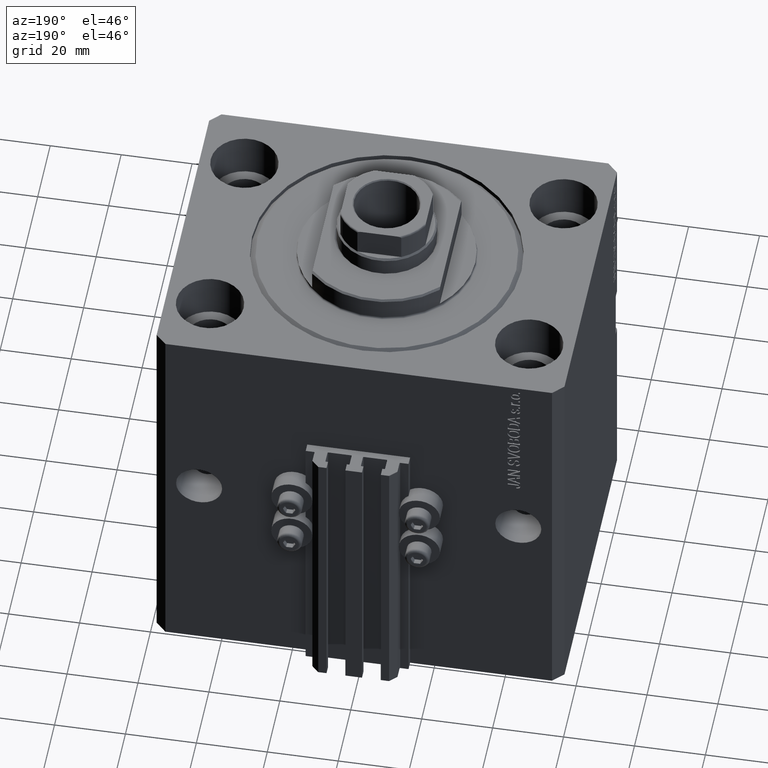
[diagram: clean part render]
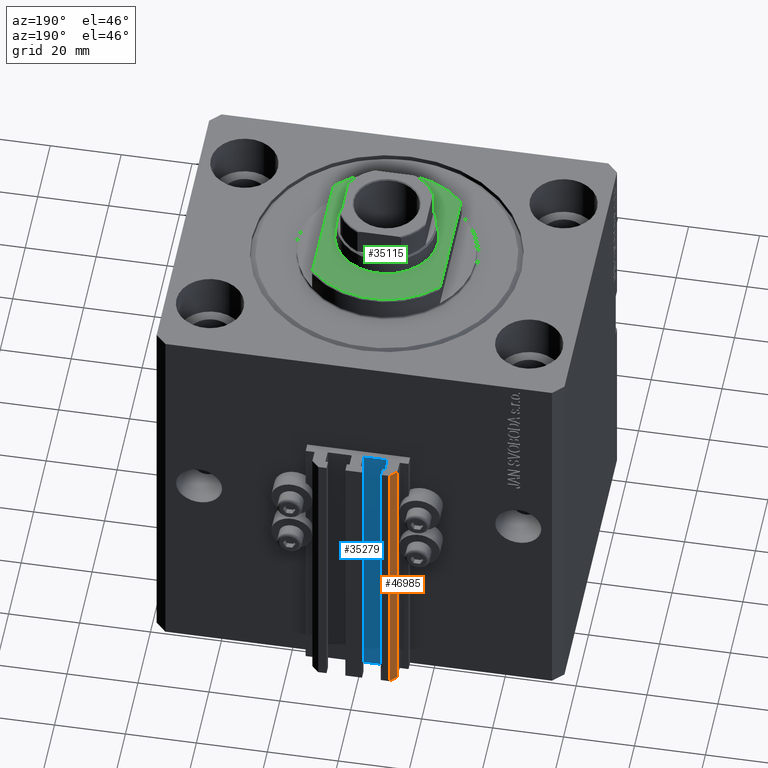
[diagram: same view with three faces highlighted in distinct colors, each labeled with its STEP entity id]
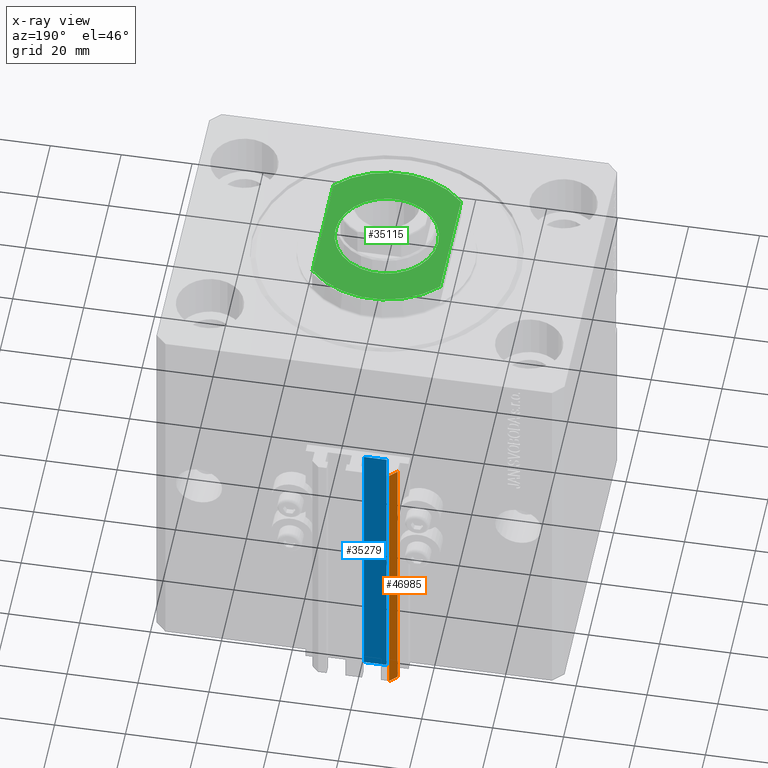
[diagram: x-ray of the same camera — body ghosted, the three highlighted faces saturated]
A machine part, auxiliary view with three faces highlighted in distinct colors.
The next image is the same camera in x-ray (body ghosted, the three faces saturated) — at least one of them is partly hidden behind the body in this view.
Their STEP definitions:

[orange] entity #46985 — the highlighted planar face has unit normal (-0.7071, 0.7071, 0).
#2159 = EDGE_LOOP ( 'NONE', ( #3400, #42994, #21381, #9452 ) ) ;
#3400 = ORIENTED_EDGE ( 'NONE', *, *, #8041, .F. ) ;
#4600 = CARTESIAN_POINT ( 'NONE',  ( -10.00000000000000000, 52.99999999999999289, -33.00000000000000000 ) ) ;
#4658 = PLANE ( 'NONE',  #21161 ) ;
#4955 = DIRECTION ( 'NONE',  ( 0.000000000000000000, 0.000000000000000000, 1.000000000000000000 ) ) ;
#8041 = EDGE_CURVE ( 'NONE', #14284, #19846, #12202, .T. ) ;
#8708 = CARTESIAN_POINT ( 'NONE',  ( -12.00000000000000000, 50.99999999999999289, -33.00000000000000000 ) ) ;
#8814 = CARTESIAN_POINT ( 'NONE',  ( -10.00000000000000000, 52.99999999999999289, -115.0000000000000000 ) ) ;
#9263 = VECTOR ( 'NONE', #33833, 999.9999999999998863 ) ;
#9452 = ORIENTED_EDGE ( 'NONE', *, *, #10214, .T. ) ;
#10214 = EDGE_CURVE ( 'NONE', #19318, #19846, #35715, .T. ) ;
#12202 = LINE ( 'NONE', #30668, #40634 ) ;
#14284 = VERTEX_POINT ( 'NONE', #4600 ) ;
#14727 = VECTOR ( 'NONE', #44451, 1000.000000000000000 ) ;
#14933 = LINE ( 'NONE', #40020, #14727 ) ;
#17005 = VECTOR ( 'NONE', #4955, 1000.000000000000000 ) ;
#17565 = CARTESIAN_POINT ( 'NONE',  ( -10.00000000000000000, 52.99999999999999289, -115.0000000000000000 ) ) ;
#18821 = LINE ( 'NONE', #27153, #9263 ) ;
#19318 = VERTEX_POINT ( 'NONE', #29863 ) ;
#19846 = VERTEX_POINT ( 'NONE', #8708 ) ;
#21161 = AXIS2_PLACEMENT_3D ( 'NONE', #8814, #34684, #42054 ) ;
#21381 = ORIENTED_EDGE ( 'NONE', *, *, #45485, .T. ) ;
#26509 = DIRECTION ( 'NONE',  ( -0.7071067811865472397, -0.7071067811865479058, 0.000000000000000000 ) ) ;
#27153 = CARTESIAN_POINT ( 'NONE',  ( -10.00000000000000000, 52.99999999999999289, -115.0000000000000000 ) ) ;
#28083 = CARTESIAN_POINT ( 'NONE',  ( -12.00000000000000000, 50.99999999999999289, -115.0000000000000000 ) ) ;
#29863 = CARTESIAN_POINT ( 'NONE',  ( -12.00000000000000000, 50.99999999999999289, -115.0000000000000000 ) ) ;
#30668 = CARTESIAN_POINT ( 'NONE',  ( -10.00000000000000000, 52.99999999999999289, -33.00000000000000000 ) ) ;
#33833 = DIRECTION ( 'NONE',  ( -0.7071067811865472397, -0.7071067811865479058, 0.000000000000000000 ) ) ;
#34684 = DIRECTION ( 'NONE',  ( -0.7071067811865477948, 0.7071067811865473507, 0.000000000000000000 ) ) ;
#35715 = LINE ( 'NONE', #28083, #17005 ) ;
#38328 = EDGE_CURVE ( 'NONE', #39243, #14284, #14933, .T. ) ;
#39243 = VERTEX_POINT ( 'NONE', #17565 ) ;
#40020 = CARTESIAN_POINT ( 'NONE',  ( -10.00000000000000000, 52.99999999999999289, -115.0000000000000000 ) ) ;
#40634 = VECTOR ( 'NONE', #26509, 999.9999999999998863 ) ;
#42054 = DIRECTION ( 'NONE',  ( -0.7071067811865473507, -0.7071067811865477948, 0.000000000000000000 ) ) ;
#42994 = ORIENTED_EDGE ( 'NONE', *, *, #38328, .F. ) ;
#44451 = DIRECTION ( 'NONE',  ( 0.000000000000000000, 0.000000000000000000, 1.000000000000000000 ) ) ;
#45485 = EDGE_CURVE ( 'NONE', #39243, #19318, #18821, .T. ) ;
#46470 = FACE_OUTER_BOUND ( 'NONE', #2159, .T. ) ;
#46985 = ADVANCED_FACE ( 'NONE', ( #46470 ), #4658, .T. ) ;

[blue] entity #35279 — the highlighted planar face has unit normal (0, 1, 0).
#1143 = PLANE ( 'NONE',  #36599 ) ;
#1269 = VECTOR ( 'NONE', #3286, 1000.000000000000000 ) ;
#2719 = CARTESIAN_POINT ( 'NONE',  ( -8.199999999999997513, 46.99999999999999289, -115.0000000000000000 ) ) ;
#2817 = ORIENTED_EDGE ( 'NONE', *, *, #5525, .T. ) ;
#3006 = VERTEX_POINT ( 'NONE', #6338 ) ;
#3286 = DIRECTION ( 'NONE',  ( -1.000000000000000000, 0.000000000000000000, 0.000000000000000000 ) ) ;
#4968 = EDGE_CURVE ( 'NONE', #7213, #8369, #14552, .T. ) ;
#5525 = EDGE_CURVE ( 'NONE', #3006, #7213, #37015, .T. ) ;
#6338 = CARTESIAN_POINT ( 'NONE',  ( -1.800000000000000933, 46.99999999999999289, -115.0000000000000000 ) ) ;
#7213 = VERTEX_POINT ( 'NONE', #41500 ) ;
#8369 = VERTEX_POINT ( 'NONE', #45857 ) ;
#11215 = DIRECTION ( 'NONE',  ( -1.000000000000000000, 0.000000000000000000, 0.000000000000000000 ) ) ;
#11995 = EDGE_CURVE ( 'NONE', #3006, #16248, #45122, .T. ) ;
#14003 = CARTESIAN_POINT ( 'NONE',  ( -1.800000000000000933, 46.99999999999999289, -33.00000000000000000 ) ) ;
#14552 = LINE ( 'NONE', #2719, #35039 ) ;
#15462 = DIRECTION ( 'NONE',  ( 0.000000000000000000, 0.000000000000000000, 1.000000000000000000 ) ) ;
#15809 = VECTOR ( 'NONE', #11215, 1000.000000000000000 ) ;
#16248 = VERTEX_POINT ( 'NONE', #14003 ) ;
#16653 = ORIENTED_EDGE ( 'NONE', *, *, #11995, .F. ) ;
#18909 = DIRECTION ( 'NONE',  ( 0.000000000000000000, 1.000000000000000000, -0.000000000000000000 ) ) ;
#21945 = DIRECTION ( 'NONE',  ( 0.000000000000000000, 0.000000000000000000, 1.000000000000000000 ) ) ;
#22065 = EDGE_CURVE ( 'NONE', #16248, #8369, #37084, .T. ) ;
#22623 = VECTOR ( 'NONE', #41431, 1000.000000000000000 ) ;
#22846 = FACE_OUTER_BOUND ( 'NONE', #41002, .T. ) ;
#26432 = CARTESIAN_POINT ( 'NONE',  ( -1.800000000000000933, 46.99999999999999289, -115.0000000000000000 ) ) ;
#26655 = CARTESIAN_POINT ( 'NONE',  ( -1.800000000000000933, 46.99999999999999289, -115.0000000000000000 ) ) ;
#30920 = CARTESIAN_POINT ( 'NONE',  ( -1.800000000000000933, 46.99999999999999289, -115.0000000000000000 ) ) ;
#35039 = VECTOR ( 'NONE', #21945, 1000.000000000000000 ) ;
#35279 = ADVANCED_FACE ( 'NONE', ( #22846 ), #1143, .T. ) ;
#36599 = AXIS2_PLACEMENT_3D ( 'NONE', #30920, #18909, #15462 ) ;
#36949 = ORIENTED_EDGE ( 'NONE', *, *, #4968, .T. ) ;
#37015 = LINE ( 'NONE', #26655, #1269 ) ;
#37084 = LINE ( 'NONE', #44941, #15809 ) ;
#41002 = EDGE_LOOP ( 'NONE', ( #46096, #16653, #2817, #36949 ) ) ;
#41431 = DIRECTION ( 'NONE',  ( 0.000000000000000000, 0.000000000000000000, 1.000000000000000000 ) ) ;
#41500 = CARTESIAN_POINT ( 'NONE',  ( -8.199999999999997513, 46.99999999999999289, -115.0000000000000000 ) ) ;
#44941 = CARTESIAN_POINT ( 'NONE',  ( -1.800000000000000933, 46.99999999999999289, -33.00000000000000000 ) ) ;
#45122 = LINE ( 'NONE', #26432, #22623 ) ;
#45857 = CARTESIAN_POINT ( 'NONE',  ( -8.199999999999997513, 46.99999999999999289, -33.00000000000000000 ) ) ;
#46096 = ORIENTED_EDGE ( 'NONE', *, *, #22065, .F. ) ;

[green] entity #35115 — the highlighted planar face has unit normal (0, 0, 1).
#30 = EDGE_CURVE ( 'NONE', #42339, #21613, #35628, .T. ) ;
#365 = CIRCLE ( 'NONE', #40380, 14.50000000000001421 ) ;
#897 = VERTEX_POINT ( 'NONE', #3554 ) ;
#1901 = CARTESIAN_POINT ( 'NONE',  ( 18.00000000000000000, -41.24318125460256113, -7.000000000000000000 ) ) ;
#2319 = DIRECTION ( 'NONE',  ( -1.000000000000000000, 0.000000000000000000, 0.000000000000000000 ) ) ;
#2712 = CIRCLE ( 'NONE', #25532, 24.49999999999996803 ) ;
#2993 = EDGE_CURVE ( 'NONE', #21613, #43724, #10522, .T. ) ;
#3333 = CARTESIAN_POINT ( 'NONE',  ( 18.00000000000000000, -16.62077013859462227, -7.000000000000000000 ) ) ;
#3554 = CARTESIAN_POINT ( 'NONE',  ( 14.50000000000001243, 1.775737858763663987E-15, -7.000000000000000000 ) ) ;
#5355 = VERTEX_POINT ( 'NONE', #38981 ) ;
#5669 = CARTESIAN_POINT ( 'NONE',  ( -18.00000000000000000, -16.62077013859462227, -7.000000000000000000 ) ) ;
#6649 = VECTOR ( 'NONE', #28726, 1000.000000000000000 ) ;
#8584 = FACE_OUTER_BOUND ( 'NONE', #10337, .T. ) ;
#9820 = CARTESIAN_POINT ( 'NONE',  ( -18.00000000000000000, 16.62077013859462227, -7.000000000000000000 ) ) ;
#10337 = EDGE_LOOP ( 'NONE', ( #22647, #45662, #36430, #45267 ) ) ;
#10522 = LINE ( 'NONE', #1901, #6649 ) ;
#14009 = CARTESIAN_POINT ( 'NONE',  ( 18.00000000000000000, 16.62077013859462227, -7.000000000000000000 ) ) ;
#14217 = EDGE_CURVE ( 'NONE', #42339, #17367, #19375, .T. ) ;
#14465 = DIRECTION ( 'NONE',  ( -1.000000000000000000, 0.000000000000000000, 0.000000000000000000 ) ) ;
#15664 = ORIENTED_EDGE ( 'NONE', *, *, #44503, .T. ) ;
#16619 = CARTESIAN_POINT ( 'NONE',  ( 0.000000000000000000, 0.000000000000000000, -7.000000000000000000 ) ) ;
#16679 = DIRECTION ( 'NONE',  ( -1.000000000000000000, 0.000000000000000000, 0.000000000000000000 ) ) ;
#17367 = VERTEX_POINT ( 'NONE', #5669 ) ;
#19193 = PLANE ( 'NONE',  #32648 ) ;
#19375 = LINE ( 'NONE', #23788, #28133 ) ;
#19678 = DIRECTION ( 'NONE',  ( -1.000000000000000000, 0.000000000000000000, -0.000000000000000000 ) ) ;
#20307 = DIRECTION ( 'NONE',  ( 0.000000000000000000, 0.000000000000000000, -1.000000000000000000 ) ) ;
#21166 = AXIS2_PLACEMENT_3D ( 'NONE', #39539, #36116, #16679 ) ;
#21613 = VERTEX_POINT ( 'NONE', #14009 ) ;
#22647 = ORIENTED_EDGE ( 'NONE', *, *, #30, .T. ) ;
#23313 = DIRECTION ( 'NONE',  ( -0.000000000000000000, -1.000000000000000000, -0.000000000000000000 ) ) ;
#23788 = CARTESIAN_POINT ( 'NONE',  ( -18.00000000000000000, -41.24318125460256113, -7.000000000000000000 ) ) ;
#23844 = DIRECTION ( 'NONE',  ( 0.000000000000000000, 0.000000000000000000, -1.000000000000000000 ) ) ;
#25532 = AXIS2_PLACEMENT_3D ( 'NONE', #28168, #36054, #43406 ) ;
#25788 = DIRECTION ( 'NONE',  ( -0.000000000000000000, -0.000000000000000000, 1.000000000000000000 ) ) ;
#26817 = CARTESIAN_POINT ( 'NONE',  ( 0.000000000000000000, 0.000000000000000000, -7.000000000000000000 ) ) ;
#27320 = EDGE_LOOP ( 'NONE', ( #28793, #15664 ) ) ;
#28133 = VECTOR ( 'NONE', #23313, 1000.000000000000000 ) ;
#28168 = CARTESIAN_POINT ( 'NONE',  ( 0.000000000000000000, 0.000000000000000000, -7.000000000000000000 ) ) ;
#28726 = DIRECTION ( 'NONE',  ( 0.000000000000000000, -1.000000000000000000, -0.000000000000000000 ) ) ;
#28793 = ORIENTED_EDGE ( 'NONE', *, *, #30805, .T. ) ;
#30805 = EDGE_CURVE ( 'NONE', #5355, #897, #365, .T. ) ;
#32648 = AXIS2_PLACEMENT_3D ( 'NONE', #26817, #23844, #19678 ) ;
#33451 = EDGE_CURVE ( 'NONE', #43724, #17367, #2712, .T. ) ;
#34457 = FACE_BOUND ( 'NONE', #27320, .T. ) ;
#35115 = ADVANCED_FACE ( 'NONE', ( #34457, #8584 ), #19193, .T. ) ;
#35628 = CIRCLE ( 'NONE', #37238, 24.49999999999996803 ) ;
#36054 = DIRECTION ( 'NONE',  ( 0.000000000000000000, 0.000000000000000000, -1.000000000000000000 ) ) ;
#36116 = DIRECTION ( 'NONE',  ( -0.000000000000000000, -0.000000000000000000, 1.000000000000000000 ) ) ;
#36430 = ORIENTED_EDGE ( 'NONE', *, *, #33451, .T. ) ;
#37238 = AXIS2_PLACEMENT_3D ( 'NONE', #16619, #20307, #2319 ) ;
#38981 = CARTESIAN_POINT ( 'NONE',  ( -14.50000000000001243, 0.000000000000000000, -7.000000000000000000 ) ) ;
#39539 = CARTESIAN_POINT ( 'NONE',  ( 0.000000000000000000, 0.000000000000000000, -7.000000000000000000 ) ) ;
#40380 = AXIS2_PLACEMENT_3D ( 'NONE', #48183, #25788, #14465 ) ;
#42339 = VERTEX_POINT ( 'NONE', #9820 ) ;
#42368 = CIRCLE ( 'NONE', #21166, 14.50000000000001421 ) ;
#43406 = DIRECTION ( 'NONE',  ( -1.000000000000000000, 0.000000000000000000, 0.000000000000000000 ) ) ;
#43724 = VERTEX_POINT ( 'NONE', #3333 ) ;
#44503 = EDGE_CURVE ( 'NONE', #897, #5355, #42368, .T. ) ;
#45267 = ORIENTED_EDGE ( 'NONE', *, *, #14217, .F. ) ;
#45662 = ORIENTED_EDGE ( 'NONE', *, *, #2993, .T. ) ;
#48183 = CARTESIAN_POINT ( 'NONE',  ( 0.000000000000000000, 0.000000000000000000, -7.000000000000000000 ) ) ;